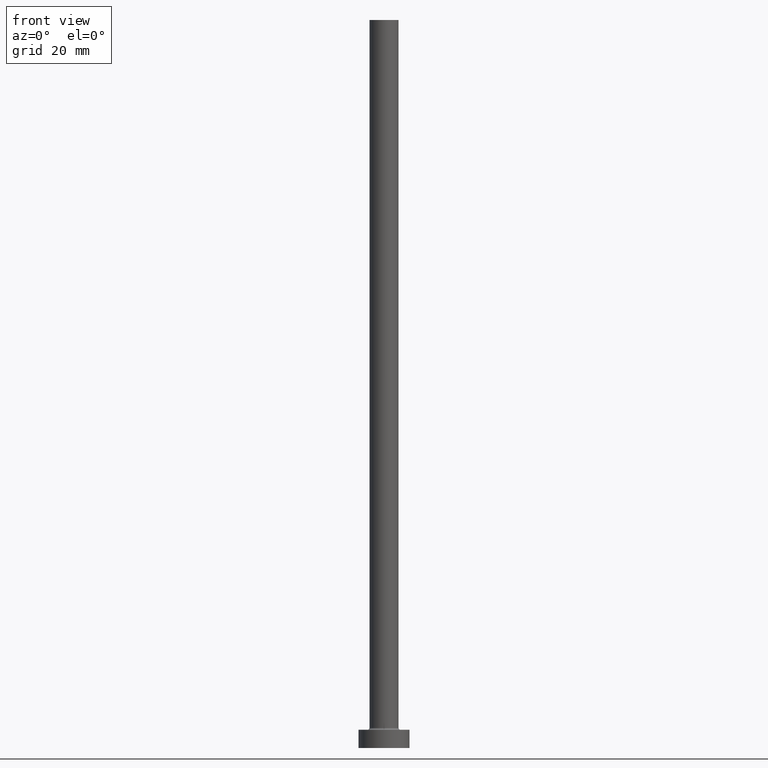
[diagram: clean part render]
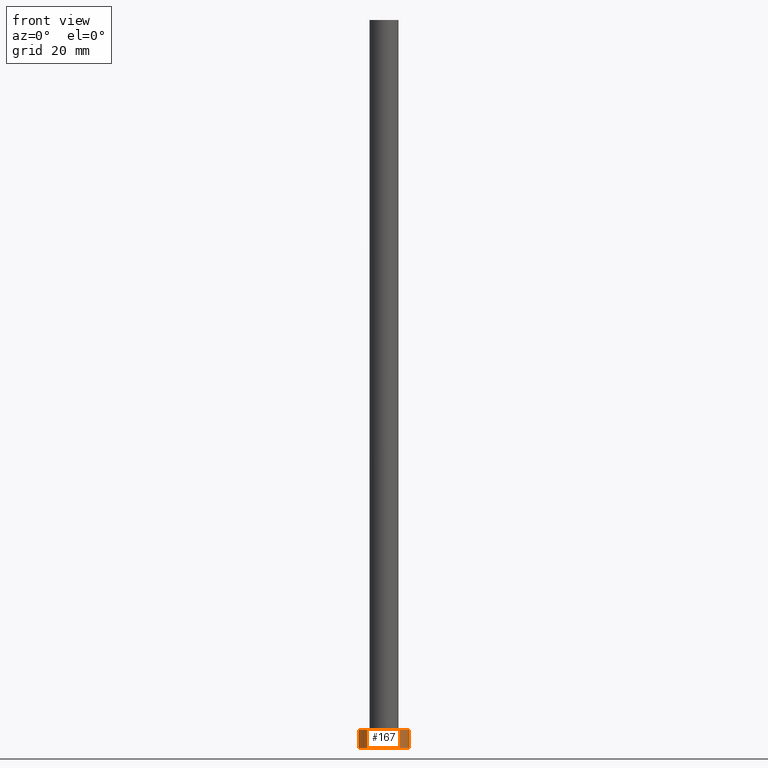
[diagram: same view with one face highlighted and labeled with its STEP entity id]
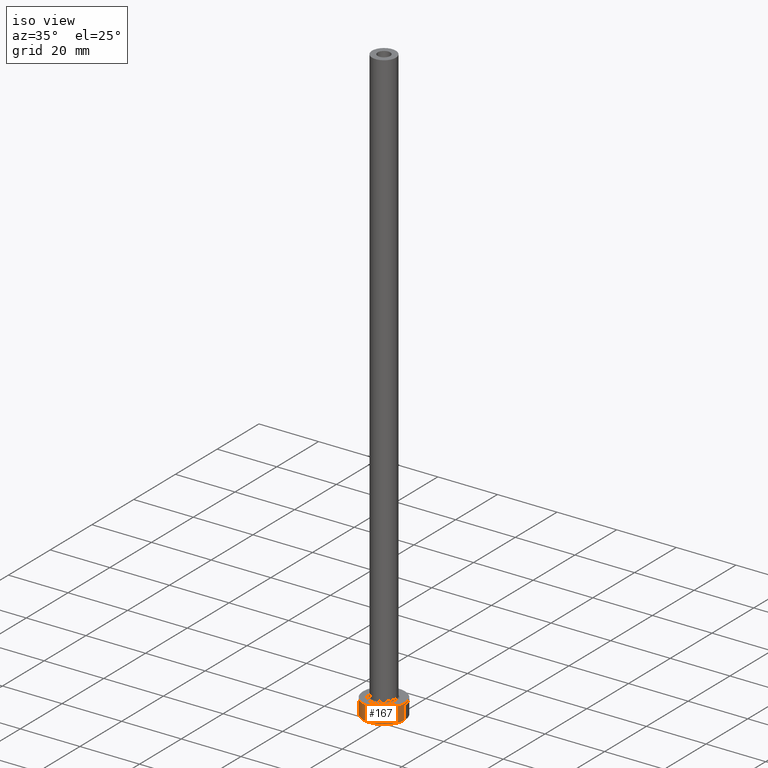
[diagram: same view with one face highlighted and labeled with its STEP entity id]
A machine part, front view. The second image highlights one B-rep face of the part: STEP entity #167.
A second angle (iso view) of the same face is appended — the face is thin or edge-on in the first view.
In plain terms, the highlighted cylindrical surface (edge-blend (fillet) strip) has radius 7 mm, axis along (-0, -0, -1).
Its self-contained STEP definition (entity closure, byte-faithful):
#6 = EDGE_CURVE ( 'NONE', #12, #303, #56, .T. ) ;
#12 = VERTEX_POINT ( 'NONE', #339 ) ;
#19 = DIRECTION ( 'NONE',  ( 0.000000000000000000, 0.000000000000000000, 1.000000000000000000 ) ) ;
#28 = DIRECTION ( 'NONE',  ( -0.000000000000000000, -0.000000000000000000, -1.000000000000000000 ) ) ;
#31 = VECTOR ( 'NONE', #28, 1000.000000000000000 ) ;
#52 = CYLINDRICAL_SURFACE ( 'NONE', #91, 7.000000000000000000 ) ;
#56 = LINE ( 'NONE', #379, #31 ) ;
#72 = DIRECTION ( 'NONE',  ( -0.000000000000000000, -0.000000000000000000, -1.000000000000000000 ) ) ;
#74 = EDGE_CURVE ( 'NONE', #324, #358, #453, .T. ) ;
#91 = AXIS2_PLACEMENT_3D ( 'NONE', #229, #207, #340 ) ;
#92 = DIRECTION ( 'NONE',  ( 1.000000000000000000, 0.000000000000000000, 0.000000000000000000 ) ) ;
#127 = DIRECTION ( 'NONE',  ( 1.000000000000000000, 0.000000000000000000, 0.000000000000000000 ) ) ;
#129 = CARTESIAN_POINT ( 'NONE',  ( 7.000000000000000000, 8.572527594031473190E-16, 0.000000000000000000 ) ) ;
#149 = CIRCLE ( 'NONE', #254, 7.000000000000000000 ) ;
#152 = AXIS2_PLACEMENT_3D ( 'NONE', #263, #19, #127 ) ;
#154 = EDGE_CURVE ( 'NONE', #303, #358, #292, .T. ) ;
#167 = ADVANCED_FACE ( 'NONE', ( #231 ), #52, .T. ) ;
#178 = ORIENTED_EDGE ( 'NONE', *, *, #6, .T. ) ;
#201 = ORIENTED_EDGE ( 'NONE', *, *, #360, .F. ) ;
#207 = DIRECTION ( 'NONE',  ( -0.000000000000000000, -0.000000000000000000, -1.000000000000000000 ) ) ;
#229 = CARTESIAN_POINT ( 'NONE',  ( 0.000000000000000000, 0.000000000000000000, 5.000000000000000000 ) ) ;
#231 = FACE_OUTER_BOUND ( 'NONE', #374, .T. ) ;
#254 = AXIS2_PLACEMENT_3D ( 'NONE', #307, #337, #92 ) ;
#263 = CARTESIAN_POINT ( 'NONE',  ( 0.000000000000000000, 0.000000000000000000, 0.000000000000000000 ) ) ;
#292 = CIRCLE ( 'NONE', #152, 7.000000000000000000 ) ;
#295 = CARTESIAN_POINT ( 'NONE',  ( 7.000000000000000000, 8.572527594031473190E-16, 5.000000000000000000 ) ) ;
#303 = VERTEX_POINT ( 'NONE', #444 ) ;
#307 = CARTESIAN_POINT ( 'NONE',  ( 0.000000000000000000, 0.000000000000000000, 5.000000000000000000 ) ) ;
#324 = VERTEX_POINT ( 'NONE', #295 ) ;
#331 = ORIENTED_EDGE ( 'NONE', *, *, #154, .T. ) ;
#337 = DIRECTION ( 'NONE',  ( 0.000000000000000000, 0.000000000000000000, 1.000000000000000000 ) ) ;
#339 = CARTESIAN_POINT ( 'NONE',  ( -7.000000000000000000, 0.000000000000000000, 5.000000000000000000 ) ) ;
#340 = DIRECTION ( 'NONE',  ( -1.000000000000000000, 0.000000000000000000, 0.000000000000000000 ) ) ;
#358 = VERTEX_POINT ( 'NONE', #129 ) ;
#360 = EDGE_CURVE ( 'NONE', #12, #324, #149, .T. ) ;
#374 = EDGE_LOOP ( 'NONE', ( #443, #201, #178, #331 ) ) ;
#379 = CARTESIAN_POINT ( 'NONE',  ( -7.000000000000000000, 0.000000000000000000, 5.000000000000000000 ) ) ;
#388 = CARTESIAN_POINT ( 'NONE',  ( 7.000000000000000000, 8.572527594031473190E-16, 5.000000000000000000 ) ) ;
#394 = VECTOR ( 'NONE', #72, 1000.000000000000000 ) ;
#443 = ORIENTED_EDGE ( 'NONE', *, *, #74, .F. ) ;
#444 = CARTESIAN_POINT ( 'NONE',  ( -7.000000000000000000, 0.000000000000000000, 0.000000000000000000 ) ) ;
#453 = LINE ( 'NONE', #388, #394 ) ;